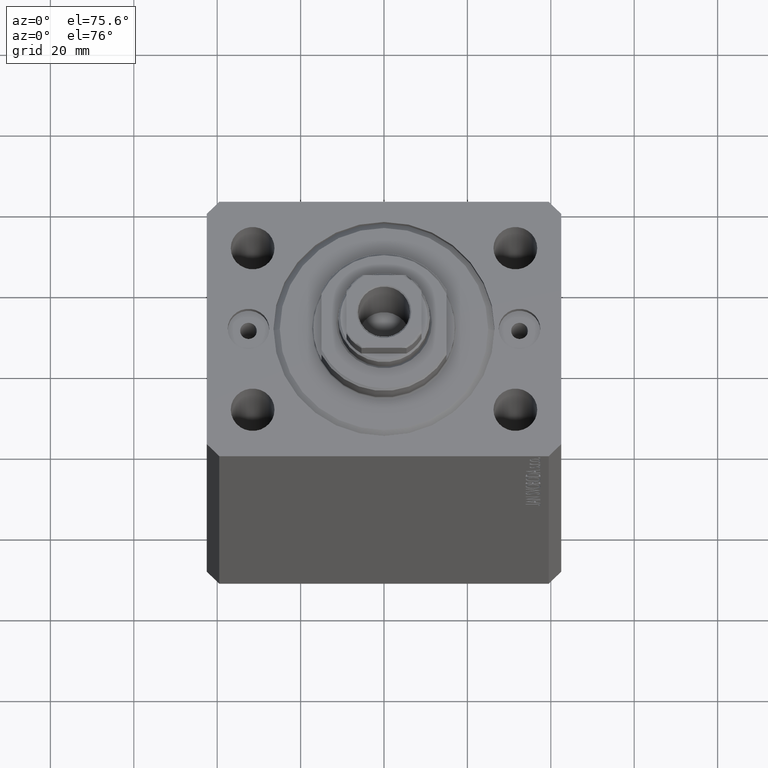
[diagram: clean part render]
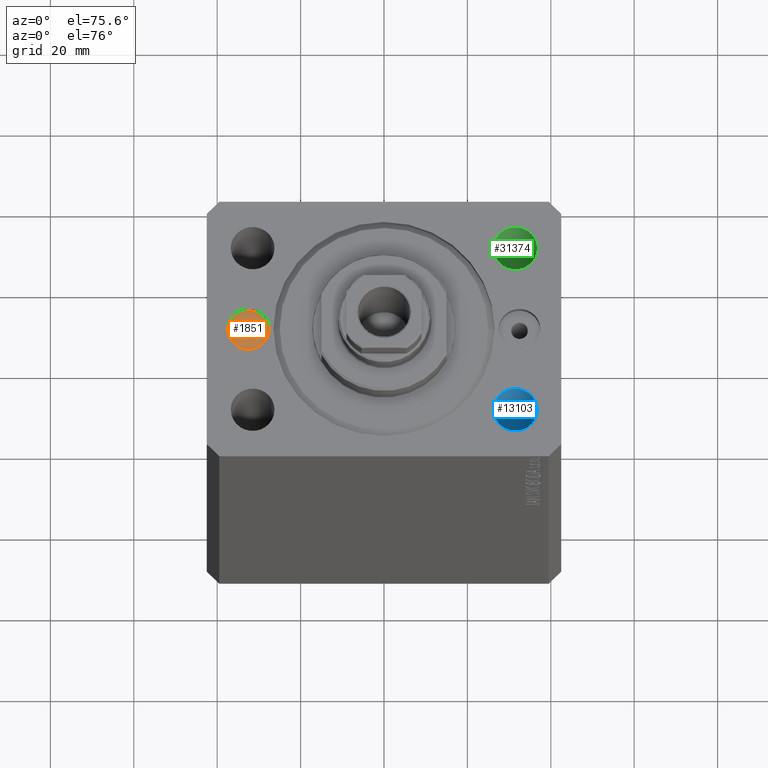
[diagram: same view with three faces highlighted in distinct colors, each labeled with its STEP entity id]
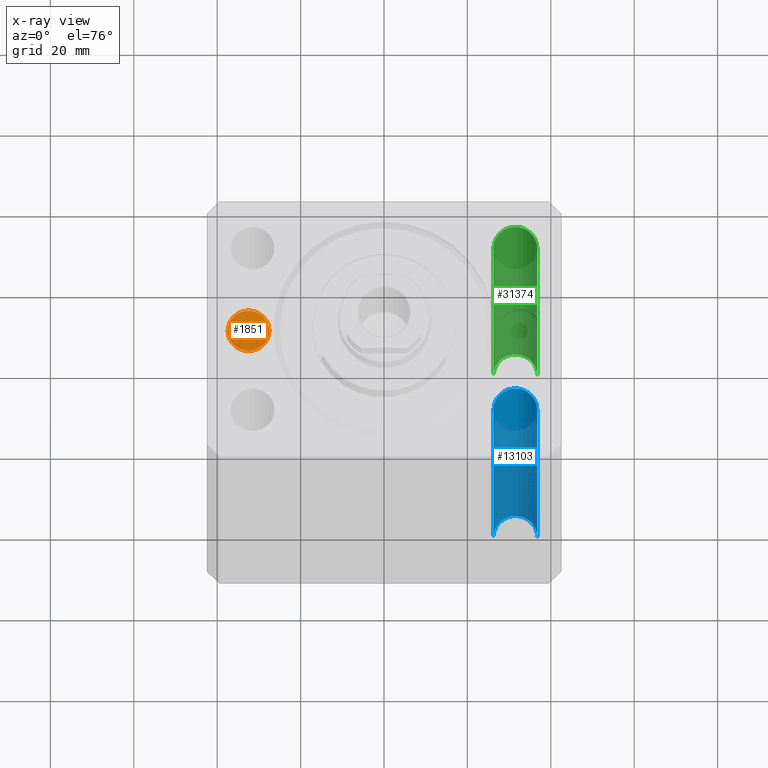
[diagram: x-ray of the same camera — body ghosted, the three highlighted faces saturated]
A machine part, auxiliary view with three faces highlighted in distinct colors.
The next image is the same camera in x-ray (body ghosted, the three faces saturated) — at least one of them is partly hidden behind the body in this view.
Their STEP definitions:

[orange] entity #1851 — the highlighted planar face has unit normal (0, 0, 1).
#1451 = EDGE_CURVE ( 'NONE', #26322, #39585, #34085, .T. ) ;
#1798 = DIRECTION ( 'NONE',  ( 0.000000000000000000, 0.000000000000000000, 1.000000000000000000 ) ) ;
#1851 = ADVANCED_FACE ( 'NONE', ( #35341, #17887 ), #25040, .T. ) ;
#2577 = AXIS2_PLACEMENT_3D ( 'NONE', #12853, #15329, #42911 ) ;
#2804 = AXIS2_PLACEMENT_3D ( 'NONE', #18396, #21302, #24880 ) ;
#4700 = DIRECTION ( 'NONE',  ( 1.000000000000000000, 0.000000000000000000, 0.000000000000000000 ) ) ;
#4718 = CARTESIAN_POINT ( 'NONE',  ( -32.50000000000000000, 0.000000000000000000, -1.899999999999999911 ) ) ;
#5456 = EDGE_CURVE ( 'NONE', #40266, #13536, #14846, .T. ) ;
#7711 = CARTESIAN_POINT ( 'NONE',  ( -34.50000000000000000, 2.449293598294701977E-16, -1.899999999999999911 ) ) ;
#9074 = ORIENTED_EDGE ( 'NONE', *, *, #5456, .T. ) ;
#11011 = CIRCLE ( 'NONE', #25343, 1.999999999999998224 ) ;
#11040 = DIRECTION ( 'NONE',  ( 1.000000000000000000, 0.000000000000000000, 0.000000000000000000 ) ) ;
#12853 = CARTESIAN_POINT ( 'NONE',  ( -32.50000000000000000, 0.000000000000000000, -1.899999999999999911 ) ) ;
#13536 = VERTEX_POINT ( 'NONE', #19996 ) ;
#13639 = EDGE_CURVE ( 'NONE', #13536, #40266, #40042, .T. ) ;
#14470 = ORIENTED_EDGE ( 'NONE', *, *, #13639, .T. ) ;
#14846 = CIRCLE ( 'NONE', #20599, 5.000000000000000888 ) ;
#15041 = CARTESIAN_POINT ( 'NONE',  ( -32.50000000000000000, 0.000000000000000000, -1.899999999999999911 ) ) ;
#15329 = DIRECTION ( 'NONE',  ( 0.000000000000000000, 0.000000000000000000, 1.000000000000000000 ) ) ;
#17887 = FACE_OUTER_BOUND ( 'NONE', #35611, .T. ) ;
#18348 = EDGE_LOOP ( 'NONE', ( #23185, #26801 ) ) ;
#18396 = CARTESIAN_POINT ( 'NONE',  ( -32.50000000000000000, 0.000000000000000000, -1.899999999999999911 ) ) ;
#19996 = CARTESIAN_POINT ( 'NONE',  ( -37.50000000000000000, 6.123233995736768255E-16, -1.899999999999999911 ) ) ;
#20599 = AXIS2_PLACEMENT_3D ( 'NONE', #15041, #1798, #4700 ) ;
#21302 = DIRECTION ( 'NONE',  ( 0.000000000000000000, 0.000000000000000000, 1.000000000000000000 ) ) ;
#23185 = ORIENTED_EDGE ( 'NONE', *, *, #1451, .F. ) ;
#24880 = DIRECTION ( 'NONE',  ( 1.000000000000000000, 0.000000000000000000, 0.000000000000000000 ) ) ;
#25040 = PLANE ( 'NONE',  #28392 ) ;
#25343 = AXIS2_PLACEMENT_3D ( 'NONE', #4718, #38807, #11040 ) ;
#26322 = VERTEX_POINT ( 'NONE', #41308 ) ;
#26801 = ORIENTED_EDGE ( 'NONE', *, *, #36745, .F. ) ;
#28392 = AXIS2_PLACEMENT_3D ( 'NONE', #28402, #39381, #31541 ) ;
#28402 = CARTESIAN_POINT ( 'NONE',  ( -32.50000000000000000, 0.000000000000000000, -1.899999999999999911 ) ) ;
#31541 = DIRECTION ( 'NONE',  ( 1.000000000000000000, 0.000000000000000000, -0.000000000000000000 ) ) ;
#34085 = CIRCLE ( 'NONE', #2577, 1.999999999999998224 ) ;
#35341 = FACE_BOUND ( 'NONE', #18348, .T. ) ;
#35611 = EDGE_LOOP ( 'NONE', ( #9074, #14470 ) ) ;
#36745 = EDGE_CURVE ( 'NONE', #39585, #26322, #11011, .T. ) ;
#38708 = CARTESIAN_POINT ( 'NONE',  ( -27.50000000000000000, 0.000000000000000000, -1.899999999999999911 ) ) ;
#38807 = DIRECTION ( 'NONE',  ( 0.000000000000000000, 0.000000000000000000, 1.000000000000000000 ) ) ;
#39381 = DIRECTION ( 'NONE',  ( 0.000000000000000000, 0.000000000000000000, 1.000000000000000000 ) ) ;
#39585 = VERTEX_POINT ( 'NONE', #7711 ) ;
#40042 = CIRCLE ( 'NONE', #2804, 5.000000000000000888 ) ;
#40266 = VERTEX_POINT ( 'NONE', #38708 ) ;
#41308 = CARTESIAN_POINT ( 'NONE',  ( -30.50000000000000355, 0.000000000000000000, -1.899999999999999911 ) ) ;
#42911 = DIRECTION ( 'NONE',  ( 1.000000000000000000, 0.000000000000000000, 0.000000000000000000 ) ) ;

[blue] entity #13103 — the highlighted cylindrical surface (edge-blend (fillet) strip) has radius 5.25 mm, axis along (0, 0, 1).
#713 = VERTEX_POINT ( 'NONE', #28652 ) ;
#1871 = EDGE_CURVE ( 'NONE', #10861, #41312, #12650, .T. ) ;
#7345 = LINE ( 'NONE', #42533, #27149 ) ;
#7815 = ORIENTED_EDGE ( 'NONE', *, *, #35967, .F. ) ;
#8114 = DIRECTION ( 'NONE',  ( -0.000000000000000000, -0.000000000000000000, -1.000000000000000000 ) ) ;
#9741 = ORIENTED_EDGE ( 'NONE', *, *, #22339, .T. ) ;
#10618 = ORIENTED_EDGE ( 'NONE', *, *, #1871, .T. ) ;
#10843 = CARTESIAN_POINT ( 'NONE',  ( 31.49999999999999289, -20.00000000000000355, -123.0000000000000000 ) ) ;
#10861 = VERTEX_POINT ( 'NONE', #37159 ) ;
#11322 = CARTESIAN_POINT ( 'NONE',  ( 31.49999999999999289, -20.00000000000000355, -137.8492424049174758 ) ) ;
#12042 = DIRECTION ( 'NONE',  ( -0.000000000000000000, -0.000000000000000000, 1.000000000000000000 ) ) ;
#12650 = CIRCLE ( 'NONE', #27699, 5.249999999999997335 ) ;
#13103 = ADVANCED_FACE ( 'NONE', ( #28133 ), #25656, .F. ) ;
#14042 = EDGE_CURVE ( 'NONE', #713, #10861, #7345, .T. ) ;
#16047 = CIRCLE ( 'NONE', #21763, 5.249999999999997335 ) ;
#18648 = LINE ( 'NONE', #38798, #26724 ) ;
#19425 = DIRECTION ( 'NONE',  ( 0.000000000000000000, 0.000000000000000000, 1.000000000000000000 ) ) ;
#21379 = AXIS2_PLACEMENT_3D ( 'NONE', #11322, #35744, #38656 ) ;
#21763 = AXIS2_PLACEMENT_3D ( 'NONE', #10843, #8114, #41348 ) ;
#21765 = DIRECTION ( 'NONE',  ( -0.000000000000000000, -0.000000000000000000, 1.000000000000000000 ) ) ;
#22339 = EDGE_CURVE ( 'NONE', #32191, #713, #16047, .T. ) ;
#22384 = CARTESIAN_POINT ( 'NONE',  ( 26.24999999999999645, -20.00000000000000355, -123.0000000000000000 ) ) ;
#23445 = CARTESIAN_POINT ( 'NONE',  ( 31.49999999999999289, -20.00000000000000355, 0.000000000000000000 ) ) ;
#25656 = CYLINDRICAL_SURFACE ( 'NONE', #21379, 5.249999999999997335 ) ;
#26724 = VECTOR ( 'NONE', #21765, 1000.000000000000000 ) ;
#27149 = VECTOR ( 'NONE', #12042, 1000.000000000000000 ) ;
#27699 = AXIS2_PLACEMENT_3D ( 'NONE', #23445, #19425, #36452 ) ;
#28133 = FACE_OUTER_BOUND ( 'NONE', #41461, .T. ) ;
#28652 = CARTESIAN_POINT ( 'NONE',  ( 36.74999999999999289, -20.00000000000000355, -123.0000000000000000 ) ) ;
#30285 = CARTESIAN_POINT ( 'NONE',  ( 26.24999999999999645, -20.00000000000000355, 0.000000000000000000 ) ) ;
#32191 = VERTEX_POINT ( 'NONE', #22384 ) ;
#32403 = ORIENTED_EDGE ( 'NONE', *, *, #14042, .T. ) ;
#35744 = DIRECTION ( 'NONE',  ( -0.000000000000000000, -0.000000000000000000, 1.000000000000000000 ) ) ;
#35967 = EDGE_CURVE ( 'NONE', #32191, #41312, #18648, .T. ) ;
#36452 = DIRECTION ( 'NONE',  ( 1.000000000000000000, 0.000000000000000000, 0.000000000000000000 ) ) ;
#37159 = CARTESIAN_POINT ( 'NONE',  ( 36.74999999999999289, -20.00000000000000355, 0.000000000000000000 ) ) ;
#38656 = DIRECTION ( 'NONE',  ( 1.000000000000000000, 0.000000000000000000, 0.000000000000000000 ) ) ;
#38798 = CARTESIAN_POINT ( 'NONE',  ( 26.24999999999999645, -20.00000000000000355, -137.8492424049174758 ) ) ;
#41312 = VERTEX_POINT ( 'NONE', #30285 ) ;
#41348 = DIRECTION ( 'NONE',  ( 1.000000000000000000, 0.000000000000000000, 0.000000000000000000 ) ) ;
#41461 = EDGE_LOOP ( 'NONE', ( #7815, #9741, #32403, #10618 ) ) ;
#42533 = CARTESIAN_POINT ( 'NONE',  ( 36.74999999999999289, -20.00000000000000355, -137.8492424049174758 ) ) ;

[green] entity #31374 — the highlighted cylindrical surface (edge-blend (fillet) strip) has radius 5.25 mm, axis along (0, 0, 1).
#162 = VERTEX_POINT ( 'NONE', #12608 ) ;
#2293 = VERTEX_POINT ( 'NONE', #10389 ) ;
#2440 = LINE ( 'NONE', #23074, #2805 ) ;
#2805 = VECTOR ( 'NONE', #29804, 1000.000000000000000 ) ;
#3674 = EDGE_CURVE ( 'NONE', #16294, #2293, #5546, .T. ) ;
#4537 = ORIENTED_EDGE ( 'NONE', *, *, #33067, .T. ) ;
#5546 = LINE ( 'NONE', #15868, #29855 ) ;
#9138 = DIRECTION ( 'NONE',  ( -0.000000000000000000, -0.000000000000000000, 1.000000000000000000 ) ) ;
#9557 = EDGE_CURVE ( 'NONE', #162, #32875, #2440, .T. ) ;
#9984 = DIRECTION ( 'NONE',  ( -0.000000000000000000, -0.000000000000000000, 1.000000000000000000 ) ) ;
#10389 = CARTESIAN_POINT ( 'NONE',  ( 36.75000000000000000, 19.99999999999999289, 0.000000000000000000 ) ) ;
#12356 = CIRCLE ( 'NONE', #41008, 5.249999999999997335 ) ;
#12608 = CARTESIAN_POINT ( 'NONE',  ( 26.25000000000000355, 19.99999999999999289, -123.0000000000000000 ) ) ;
#13360 = CYLINDRICAL_SURFACE ( 'NONE', #40983, 5.249999999999997335 ) ;
#15402 = DIRECTION ( 'NONE',  ( -0.000000000000000000, -0.000000000000000000, -1.000000000000000000 ) ) ;
#15868 = CARTESIAN_POINT ( 'NONE',  ( 36.75000000000000000, 19.99999999999999289, -137.8492424049174758 ) ) ;
#16294 = VERTEX_POINT ( 'NONE', #41755 ) ;
#16943 = EDGE_LOOP ( 'NONE', ( #33256, #4537, #38912, #20296 ) ) ;
#19085 = CARTESIAN_POINT ( 'NONE',  ( 31.50000000000000000, 19.99999999999999289, 0.000000000000000000 ) ) ;
#20296 = ORIENTED_EDGE ( 'NONE', *, *, #25767, .T. ) ;
#21678 = DIRECTION ( 'NONE',  ( 1.000000000000000000, 0.000000000000000000, 0.000000000000000000 ) ) ;
#23074 = CARTESIAN_POINT ( 'NONE',  ( 26.25000000000000355, 19.99999999999999289, -137.8492424049174758 ) ) ;
#23668 = DIRECTION ( 'NONE',  ( 1.000000000000000000, 0.000000000000000000, 0.000000000000000000 ) ) ;
#25767 = EDGE_CURVE ( 'NONE', #2293, #32875, #32416, .T. ) ;
#26009 = DIRECTION ( 'NONE',  ( 1.000000000000000000, 0.000000000000000000, 0.000000000000000000 ) ) ;
#27031 = CARTESIAN_POINT ( 'NONE',  ( 31.50000000000000000, 19.99999999999999289, -137.8492424049174758 ) ) ;
#29804 = DIRECTION ( 'NONE',  ( -0.000000000000000000, -0.000000000000000000, 1.000000000000000000 ) ) ;
#29855 = VECTOR ( 'NONE', #9138, 1000.000000000000000 ) ;
#30275 = CARTESIAN_POINT ( 'NONE',  ( 26.25000000000000355, 19.99999999999999289, 0.000000000000000000 ) ) ;
#30388 = FACE_OUTER_BOUND ( 'NONE', #16943, .T. ) ;
#31374 = ADVANCED_FACE ( 'NONE', ( #30388 ), #13360, .F. ) ;
#32416 = CIRCLE ( 'NONE', #36743, 5.249999999999997335 ) ;
#32875 = VERTEX_POINT ( 'NONE', #30275 ) ;
#33067 = EDGE_CURVE ( 'NONE', #162, #16294, #12356, .T. ) ;
#33256 = ORIENTED_EDGE ( 'NONE', *, *, #9557, .F. ) ;
#33382 = DIRECTION ( 'NONE',  ( 0.000000000000000000, 0.000000000000000000, 1.000000000000000000 ) ) ;
#36743 = AXIS2_PLACEMENT_3D ( 'NONE', #19085, #33382, #26009 ) ;
#38912 = ORIENTED_EDGE ( 'NONE', *, *, #3674, .T. ) ;
#38940 = CARTESIAN_POINT ( 'NONE',  ( 31.50000000000000000, 19.99999999999999289, -123.0000000000000000 ) ) ;
#40983 = AXIS2_PLACEMENT_3D ( 'NONE', #27031, #9984, #23668 ) ;
#41008 = AXIS2_PLACEMENT_3D ( 'NONE', #38940, #15402, #21678 ) ;
#41755 = CARTESIAN_POINT ( 'NONE',  ( 36.75000000000000000, 19.99999999999999289, -123.0000000000000000 ) ) ;